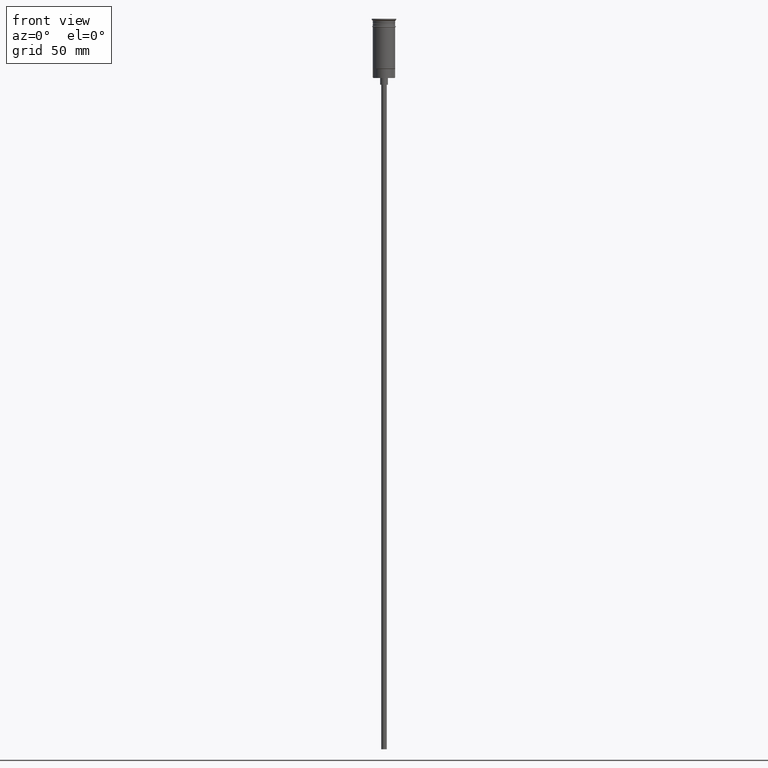
[diagram: clean part render]
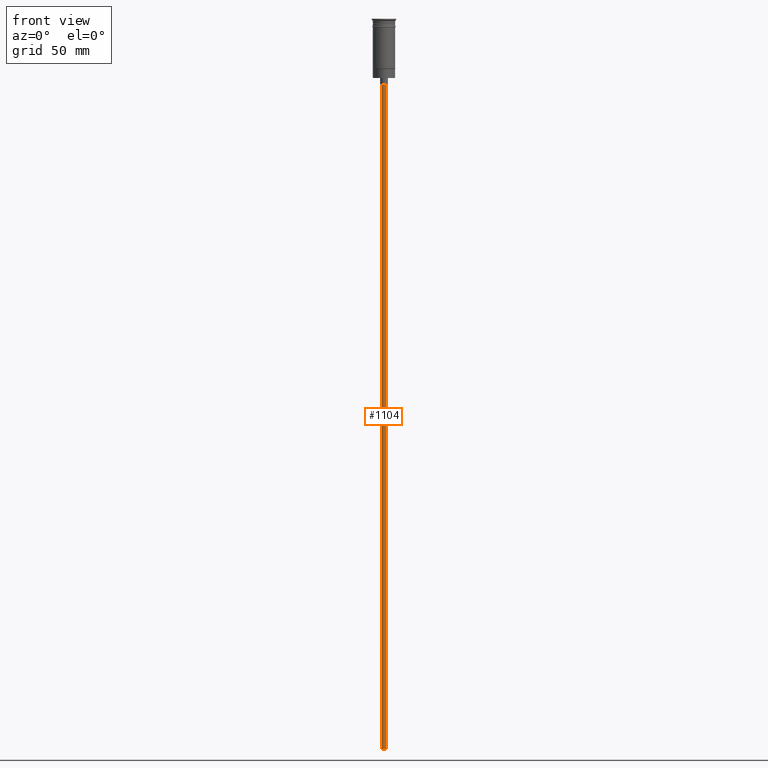
[diagram: same view with one face highlighted and labeled with its STEP entity id]
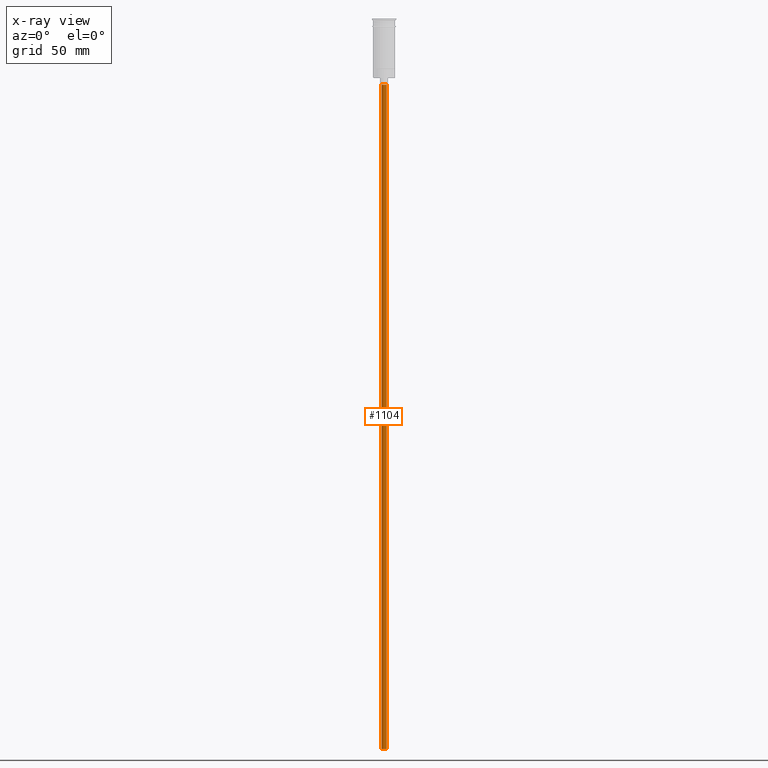
[diagram: x-ray of the same camera — body ghosted, the highlighted face saturated]
A machine part, front view. The second image highlights one B-rep face of the part: STEP entity #1104.
The next image is the same camera in x-ray: the body ghosted, the highlighted face saturated — about 0% of this face is hidden behind the body in this view.
In plain terms, the highlighted cylindrical surface (edge-blend (fillet) strip) has radius 1.25 mm, axis along (-0, -0, 1).
Its self-contained STEP definition (entity closure, byte-faithful):
#29 = DIRECTION ( 'NONE',  ( -0.000000000000000000, -0.000000000000000000, 1.000000000000000000 ) ) ;
#43 = DIRECTION ( 'NONE',  ( 1.000000000000000000, 0.000000000000000000, 0.000000000000000000 ) ) ;
#53 = EDGE_LOOP ( 'NONE', ( #314, #676, #1457, #977 ) ) ;
#113 = AXIS2_PLACEMENT_3D ( 'NONE', #213, #697, #1167 ) ;
#123 = LINE ( 'NONE', #890, #378 ) ;
#191 = CARTESIAN_POINT ( 'NONE',  ( -1.250000000000000000, 1.530808498934191571E-16, -326.5000000000000000 ) ) ;
#204 = CARTESIAN_POINT ( 'NONE',  ( 0.000000000000000000, 0.000000000000000000, -326.5000000000000000 ) ) ;
#213 = CARTESIAN_POINT ( 'NONE',  ( 0.000000000000000000, 0.000000000000000000, -29.50000000000000000 ) ) ;
#267 = LINE ( 'NONE', #630, #866 ) ;
#304 = VERTEX_POINT ( 'NONE', #462 ) ;
#314 = ORIENTED_EDGE ( 'NONE', *, *, #456, .F. ) ;
#333 = CYLINDRICAL_SURFACE ( 'NONE', #1371, 1.250000000000000000 ) ;
#368 = EDGE_CURVE ( 'NONE', #1251, #1047, #1208, .T. ) ;
#378 = VECTOR ( 'NONE', #1360, 1000.000000000000000 ) ;
#445 = EDGE_CURVE ( 'NONE', #304, #802, #712, .T. ) ;
#456 = EDGE_CURVE ( 'NONE', #1047, #802, #267, .T. ) ;
#462 = CARTESIAN_POINT ( 'NONE',  ( 1.250000000000000000, 0.000000000000000000, -29.50000000000000000 ) ) ;
#496 = DIRECTION ( 'NONE',  ( 0.000000000000000000, 0.000000000000000000, -1.000000000000000000 ) ) ;
#630 = CARTESIAN_POINT ( 'NONE',  ( -1.250000000000000000, 1.530808498934191571E-16, -326.5000000000000000 ) ) ;
#645 = AXIS2_PLACEMENT_3D ( 'NONE', #1594, #496, #1002 ) ;
#676 = ORIENTED_EDGE ( 'NONE', *, *, #368, .F. ) ;
#697 = DIRECTION ( 'NONE',  ( 0.000000000000000000, 0.000000000000000000, -1.000000000000000000 ) ) ;
#712 = CIRCLE ( 'NONE', #113, 1.250000000000000000 ) ;
#802 = VERTEX_POINT ( 'NONE', #1261 ) ;
#809 = EDGE_CURVE ( 'NONE', #1251, #304, #123, .T. ) ;
#866 = VECTOR ( 'NONE', #1142, 1000.000000000000000 ) ;
#890 = CARTESIAN_POINT ( 'NONE',  ( 1.250000000000000000, 0.000000000000000000, -326.5000000000000000 ) ) ;
#977 = ORIENTED_EDGE ( 'NONE', *, *, #445, .T. ) ;
#1002 = DIRECTION ( 'NONE',  ( -1.000000000000000000, 0.000000000000000000, 0.000000000000000000 ) ) ;
#1047 = VERTEX_POINT ( 'NONE', #191 ) ;
#1104 = ADVANCED_FACE ( 'NONE', ( #1455 ), #333, .T. ) ;
#1142 = DIRECTION ( 'NONE',  ( -0.000000000000000000, -0.000000000000000000, 1.000000000000000000 ) ) ;
#1167 = DIRECTION ( 'NONE',  ( -1.000000000000000000, 0.000000000000000000, 0.000000000000000000 ) ) ;
#1208 = CIRCLE ( 'NONE', #645, 1.250000000000000000 ) ;
#1251 = VERTEX_POINT ( 'NONE', #1407 ) ;
#1261 = CARTESIAN_POINT ( 'NONE',  ( -1.250000000000000000, 1.530808498934191571E-16, -29.50000000000000000 ) ) ;
#1360 = DIRECTION ( 'NONE',  ( -0.000000000000000000, -0.000000000000000000, 1.000000000000000000 ) ) ;
#1371 = AXIS2_PLACEMENT_3D ( 'NONE', #204, #29, #43 ) ;
#1407 = CARTESIAN_POINT ( 'NONE',  ( 1.250000000000000000, 0.000000000000000000, -326.5000000000000000 ) ) ;
#1455 = FACE_OUTER_BOUND ( 'NONE', #53, .T. ) ;
#1457 = ORIENTED_EDGE ( 'NONE', *, *, #809, .T. ) ;
#1594 = CARTESIAN_POINT ( 'NONE',  ( 0.000000000000000000, 0.000000000000000000, -326.5000000000000000 ) ) ;